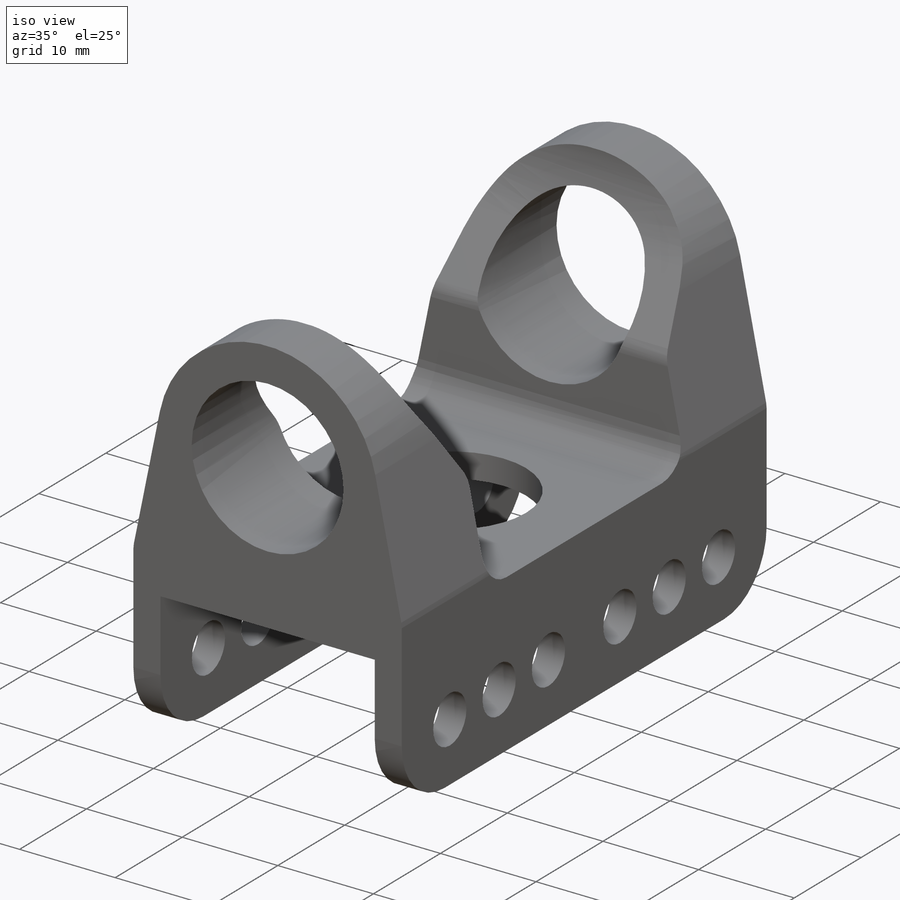
[diagram: iso view]
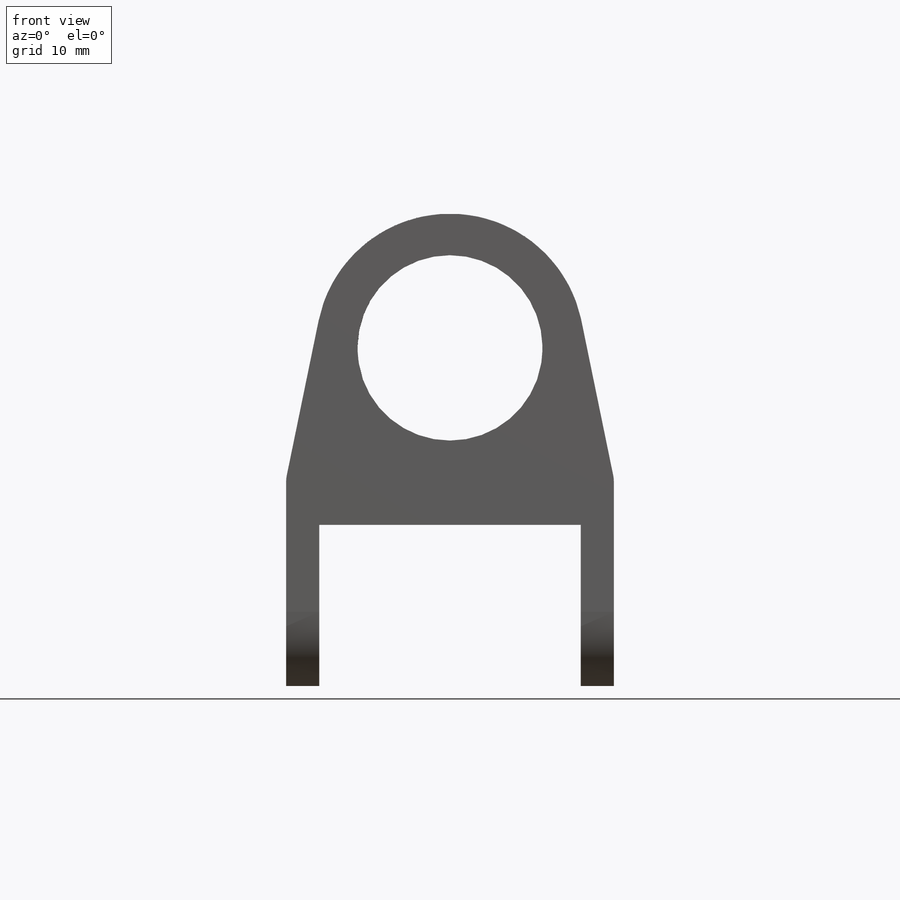
[diagram: front view]
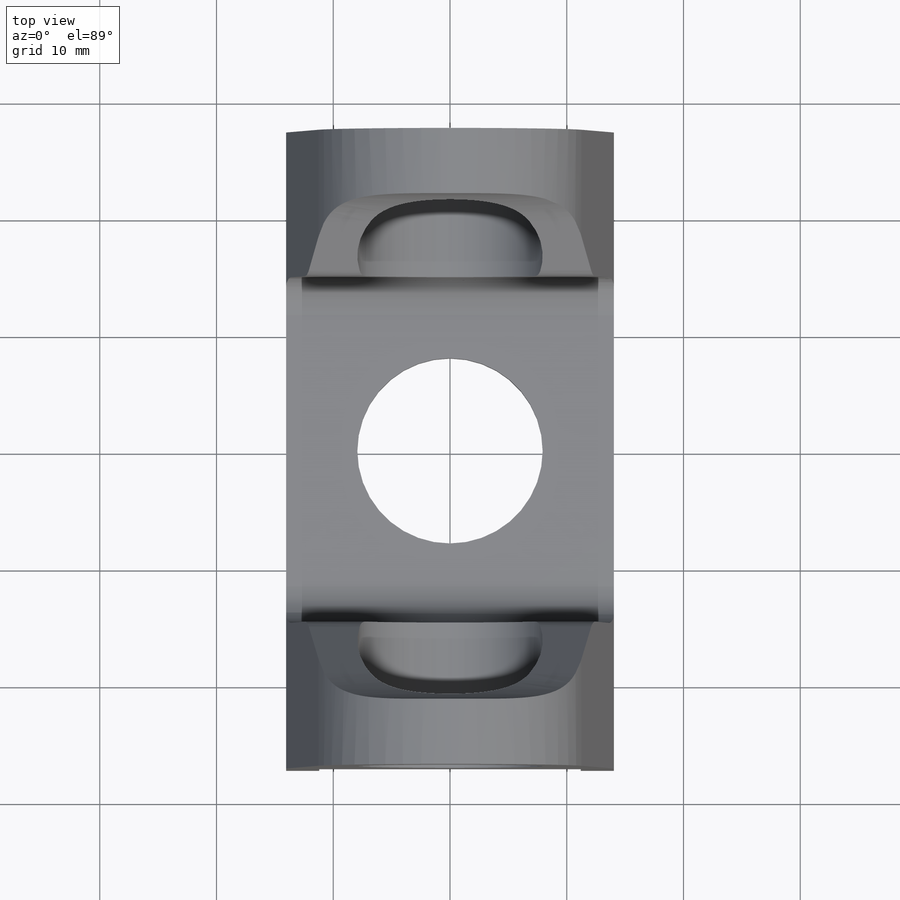
[diagram: top view]
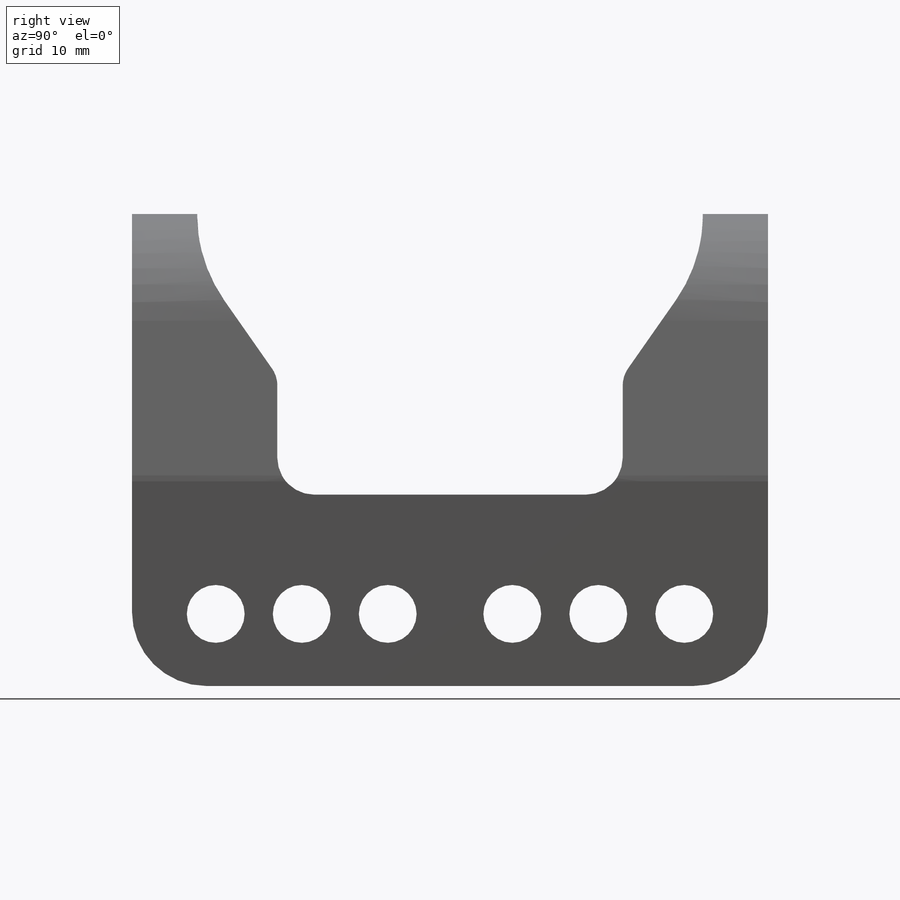
[diagram: right view]
SOLIDWORKS PART (.sldprt)
format: sldprt  version: not decoded by parser v0  size: 364,032 bytes
history: native  units: mm
features: fillet x5, sketch x4, cut_extrude x3, material x1, extrude x1 (+11 scaffold rows collapsed)
feature tree (25):
  scaffold x11  (default folders/planes/origin — collapsed)
  material  "6061-T6 (SS)"
  sketch  "Sketch1"  dims[c1.D1=15.875mm c1.D4=15.875mm c1.D2=2.7178mm c1.D3=13.7922mm c2.D4=3.556mm c2.D5=26.8732mm c2.D6=28.067mm c2.D7=17.78mm c3.D5=28.956mm c3.D2=22.4028mm]
  extrude  "Boss-Extrude1"  Depth=54.483mm
  sketch  "Sketch2"  dims[c1.D1=4.953mm c1.D2=4.953mm c1.D3=4.953mm c1.D4=4.953mm c1.D5=4.953mm c1.D6=4.953mm c2.D2=25.4mm c2.D3=7.366mm c2.D4=7.366mm c2.D5=7.366mm c2.D6=7.366mm c2.D7=7.62mm]
  cut_extrude  "Cut-Extrude1"  [1 undecoded]
  sketch  "Sketch3"  dims[c1.D1=16.383mm c1.D2=29.591mm c1.D3=5.588mm c1.D4=29.591mm c2.D4=125.0deg c2.D5=10.16mm]
  cut_extrude  "Cut-Extrude2"  [1 undecoded]
  sketch  "Sketch4"  dims[D1=15.875mm]
  cut_extrude  "Cut-Extrude3"  [1 undecoded]
  fillet  "Fillet1"  Radius=6.35mm
  fillet  "Fillet2"  Radius=3.175mm
  fillet  "Fillet3"  Radius=12.7mm
  fillet  "Fillet4"  Radius=2.54mm
  fillet  "Fillet5"  Radius=2.54mm
decode coverage: 10 of 13 modeling features carry decoded parameters
note: 3 parameter values undecoded
summary: no parameter record found for 3 features
note: suppression state not decoded; provenance and decode notes live in map.json
